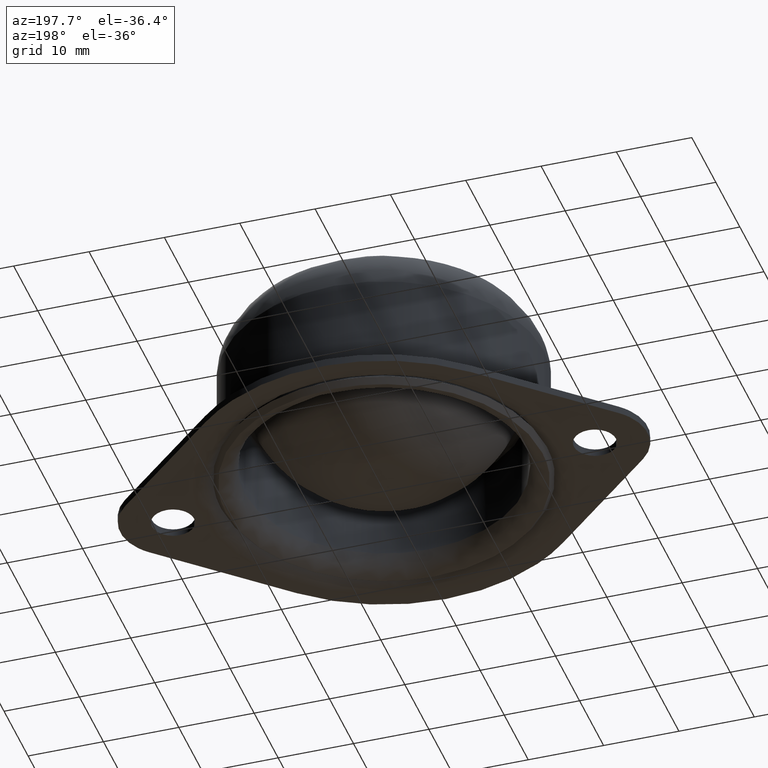
[diagram: clean part render]
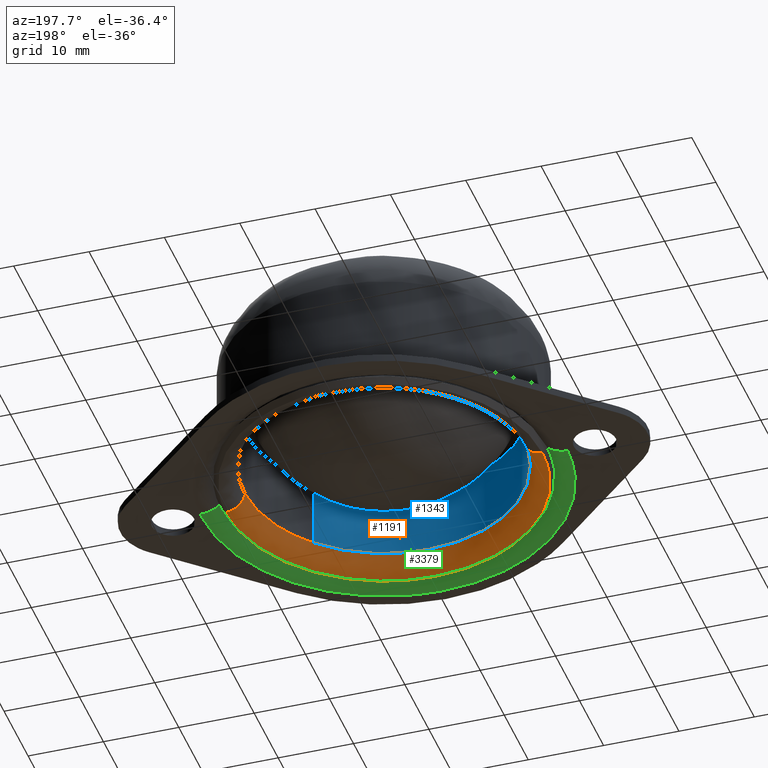
[diagram: same view with three faces highlighted in distinct colors, each labeled with its STEP entity id]
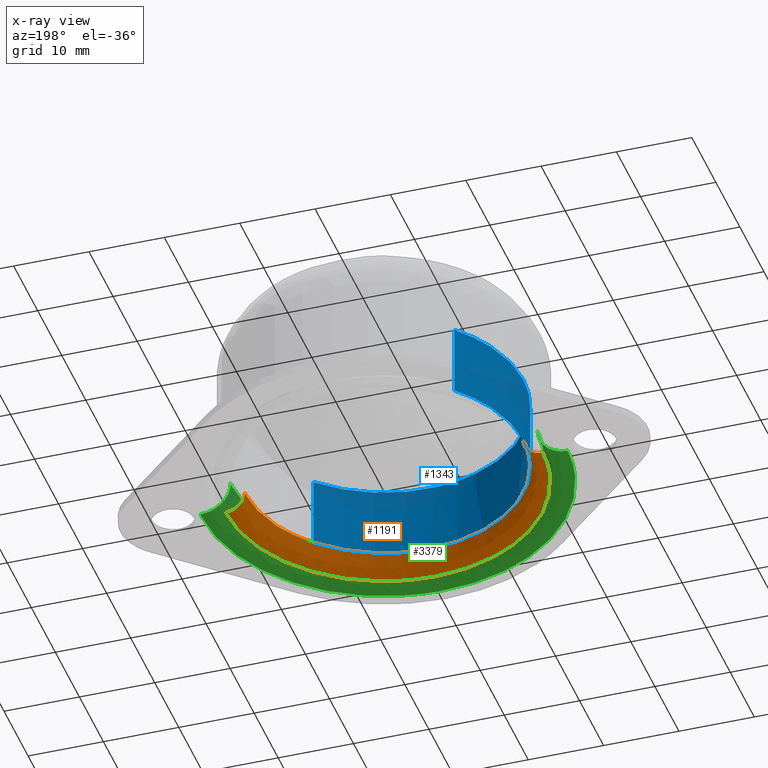
[diagram: x-ray of the same camera — body ghosted, the three highlighted faces saturated]
A machine part, auxiliary view with three faces highlighted in distinct colors.
The next image is the same camera in x-ray (body ghosted, the three faces saturated) — at least one of them is partly hidden behind the body in this view.
Their STEP definitions:

[orange] entity #1191 — the highlighted face is a freeform B-spline surface patch.
#864=CARTESIAN_POINT('',(-14.187394579578950,-15.482824312718609,0.000000114078337));
#865=VERTEX_POINT('',#864);
#871=CARTESIAN_POINT('',(-0.000000939415835,-20.999999999999979,3.772895E-016));
#872=VERTEX_POINT('',#871);
#873=CARTESIAN_POINT('',(-0.000000939415835,-20.999999999999979,3.772895E-016));
#874=CARTESIAN_POINT('',(-0.851869822019759,-21.000015865977979,6.849728E-009));
#875=CARTESIAN_POINT('',(-2.799011884055934,-20.881403785911001,0.000000022506355));
#876=CARTESIAN_POINT('',(-5.391136572539282,-20.356165427377299,0.000000043349173));
#877=CARTESIAN_POINT('',(-7.929283038588316,-19.494040823122969,0.000000063757962));
#878=CARTESIAN_POINT('',(-10.282509957399530,-18.385029033072591,0.000000082679846));
#879=CARTESIAN_POINT('',(-12.430540765362389,-16.988077880069969,0.000000099951784));
#880=CARTESIAN_POINT('',(-13.708871589433320,-15.921310460756150,0.000000110230617));
#881=CARTESIAN_POINT('',(-14.187394579578950,-15.482824312718609,0.000000114078337));
#882=B_SPLINE_CURVE_WITH_KNOTS('',3,(#873,#874,#875,#876,#877,#878,#879,#880,#881),.UNSPECIFIED.,.F.,.U.,(4,1,1,1,1,1,4),(9.159482E-009,2.555613293328863,5.841414655166473,7.910225976649496,10.587545192535449,13.629956926317560,15.577084551461819),.UNSPECIFIED.);
#883=EDGE_CURVE('',#872,#865,#882,.T.);
#885=CARTESIAN_POINT('',(20.999999999737959,8.874474E-016,3.772895E-016));
#886=VERTEX_POINT('',#885);
#887=CARTESIAN_POINT('',(20.999999999737959,8.874474E-016,3.772895E-016));
#888=CARTESIAN_POINT('',(21.000082275789801,-1.159688507236779,3.772895E-016));
#889=CARTESIAN_POINT('',(20.839477913026052,-3.092474164647127,3.772895E-016));
#890=CARTESIAN_POINT('',(20.264513954700810,-5.652748570818164,3.772895E-016));
#891=CARTESIAN_POINT('',(19.495111575165261,-7.934726424813935,3.772895E-016));
#892=CARTESIAN_POINT('',(18.556408442125040,-9.919451099284023,3.772895E-016));
#893=CARTESIAN_POINT('',(17.344765577711311,-11.899361179728221,3.772895E-016));
#894=CARTESIAN_POINT('',(15.943668281102990,-13.752664210185319,3.772895E-016));
#895=CARTESIAN_POINT('',(14.260058771090611,-15.478113818729280,3.772895E-016));
#896=CARTESIAN_POINT('',(12.427400966306919,-16.972701969115871,3.772895E-016));
#897=CARTESIAN_POINT('',(10.236730927620080,-18.417204233700961,3.772895E-016));
#898=CARTESIAN_POINT('',(7.352902934704306,-19.781251844656040,3.772895E-016));
#899=CARTESIAN_POINT('',(3.779677386550677,-20.769979737297579,3.772895E-016));
#900=CARTESIAN_POINT('',(1.288553569583285,-21.000137542239688,3.772895E-016));
#901=CARTESIAN_POINT('',(-0.000000939415835,-20.999999999999979,3.772895E-016));
#902=B_SPLINE_CURVE_WITH_KNOTS('',3,(#887,#888,#889,#890,#891,#892,#893,#894,#895,#896,#897,#898,#899,#900,#901),.UNSPECIFIED.,.F.,.U.,(4,1,1,1,1,1,1,1,1,1,1,1,4),(0.000000036760078,3.479054767147851,5.798456630922335,7.860130023572292,10.694941166173930,12.370057398345160,14.818285687690990,17.653074619405722,19.585876879921539,21.905279384400270,25.513209090944269,29.121139527746099,32.986775138493897),.UNSPECIFIED.);
#903=EDGE_CURVE('',#886,#872,#902,.T.);
#966=CARTESIAN_POINT('',(-20.999999999737959,-1.774895E-015,3.772895E-016));
#967=VERTEX_POINT('',#966);
#986=CARTESIAN_POINT('',(-14.187394579578950,-15.482824312718609,0.000000114078337));
#987=CARTESIAN_POINT('',(-14.822513733975709,-14.900879296158619,0.000000109790533));
#988=CARTESIAN_POINT('',(-16.052523571355088,-13.625986663620861,0.000000100397051));
#989=CARTESIAN_POINT('',(-17.601587269815361,-11.550699646180171,0.000000085106217));
#990=CARTESIAN_POINT('',(-18.816160465898729,-9.420190914047902,0.000000069408507));
#991=CARTESIAN_POINT('',(-19.752915935672839,-7.253278895654531,0.000000053442575));
#992=CARTESIAN_POINT('',(-20.366153610787229,-5.256242029408212,0.000000038728293));
#993=CARTESIAN_POINT('',(-20.863839929454230,-2.810910018949975,0.000000020710946));
#994=CARTESIAN_POINT('',(-21.000084239133841,-1.133448192475363,8.351312E-009));
#995=CARTESIAN_POINT('',(-20.999999999737959,-1.774895E-015,3.772895E-016));
#996=B_SPLINE_CURVE_WITH_KNOTS('',3,(#986,#987,#988,#989,#990,#991,#992,#993,#994,#995),.UNSPECIFIED.,.F.,.U.,(4,1,1,1,1,1,1,4),(0.000000010502166,2.584246736330842,5.304515828535413,7.752765949322086,9.928955446426715,12.377198538748820,14.009360749671490,17.409689852772491),.UNSPECIFIED.);
#997=EDGE_CURVE('',#865,#967,#996,.T.);
#1032=CARTESIAN_POINT('',(-18.500000000000000,-1.774830E-015,2.499999999969660));
#1033=VERTEX_POINT('',#1032);
#1034=CARTESIAN_POINT('',(-20.999999999737959,-1.774895E-015,3.772895E-016));
#1035=CARTESIAN_POINT('',(-20.744324765432051,-2.212275E-015,-0.000132067033186));
#1036=CARTESIAN_POINT('',(-20.284205673356361,-2.876954E-015,0.071239683960350));
#1037=CARTESIAN_POINT('',(-19.647169954390598,-3.467351E-015,0.362969159126910));
#1038=CARTESIAN_POINT('',(-19.098982943557719,-3.625887E-015,0.818427246210302));
#1039=CARTESIAN_POINT('',(-18.714905214208560,-3.273195E-015,1.408772553170699));
#1040=CARTESIAN_POINT('',(-18.532095626058659,-2.576734E-015,1.998907862322674));
#1041=CARTESIAN_POINT('',(-18.499989525280331,-2.037128E-015,2.346604111279722));
#1042=CARTESIAN_POINT('',(-18.500000000000000,-1.774830E-015,2.499999999969660));
#1043=B_SPLINE_CURVE_WITH_KNOTS('',3,(#1034,#1035,#1036,#1037,#1038,#1039,#1040,#1041,#1042),.UNSPECIFIED.,.F.,.U.,(4,1,1,1,1,1,4),(0.000000099703742,0.766991281476389,1.380601126672065,2.086211296421535,2.883901465996877,3.466821939990732,3.927015457032708),.UNSPECIFIED.);
#1044=EDGE_CURVE('',#967,#1033,#1043,.T.);
#1049=CARTESIAN_POINT('',(18.500000000000000,8.874149E-016,2.499999999969660));
#1050=VERTEX_POINT('',#1049);
#1051=CARTESIAN_POINT('',(20.999999999737959,8.874474E-016,3.772895E-016));
#1052=CARTESIAN_POINT('',(20.805694587303272,1.053589E-015,-0.000034980748262));
#1053=CARTESIAN_POINT('',(20.386411776773649,1.370028E-015,0.049100565435209));
#1054=CARTESIAN_POINT('',(19.808675840595448,1.673467E-015,0.271892470114194));
#1055=CARTESIAN_POINT('',(19.364510227128559,1.782154E-015,0.588919518613822));
#1056=CARTESIAN_POINT('',(18.989728009886129,1.766068E-015,0.982511971260075));
#1057=CARTESIAN_POINT('',(18.702773217739761,1.613312E-015,1.448142255574861));
#1058=CARTESIAN_POINT('',(18.532084125734510,1.288382E-015,1.998901292728886));
#1059=CARTESIAN_POINT('',(18.499989278062689,1.018564E-015,2.346603971531264));
#1060=CARTESIAN_POINT('',(18.500000000000000,8.874149E-016,2.499999999969660));
#1061=B_SPLINE_CURVE_WITH_KNOTS('',3,(#1051,#1052,#1053,#1054,#1055,#1056,#1057,#1058,#1059,#1060),.UNSPECIFIED.,.F.,.U.,(4,1,1,1,1,1,1,4),(0.000000099706883,0.582916026631016,1.257880891828751,1.840805102475129,2.208925010525802,2.883901465996887,3.466821939990747,3.927015457032711),.UNSPECIFIED.);
#1062=EDGE_CURVE('',#886,#1050,#1061,.T.);
#1111=CARTESIAN_POINT('',(21.173376579469736,0.591938535083159,0.006019133655719));
#1112=CARTESIAN_POINT('',(21.173376579469739,0.297692918457087,0.006019133655719));
#1113=CARTESIAN_POINT('',(21.173376579469725,-21.173376579469725,0.006019133655719));
#1114=CARTESIAN_POINT('',(2.592905E-015,-21.173376579469736,0.006019133655719));
#1115=CARTESIAN_POINT('',(-21.173376579469725,-21.173376579469725,0.006019133655719));
#1116=CARTESIAN_POINT('',(-21.173376579469736,0.297692918457088,0.006019133655719));
#1117=CARTESIAN_POINT('',(-21.173376579469728,0.591938535083166,0.006019133655719));
#1118=CARTESIAN_POINT('',(18.305651776180618,0.511766304985171,-0.193339379460539));
#1119=CARTESIAN_POINT('',(18.305651776180621,0.257373351909979,-0.193339379460539));
#1120=CARTESIAN_POINT('',(18.305651776180611,-18.305651776180611,-0.193339379460538));
#1121=CARTESIAN_POINT('',(2.241722E-015,-18.305651776180625,-0.193339379460539));
#1122=CARTESIAN_POINT('',(-18.305651776180611,-18.305651776180614,-0.193339379460538));
#1123=CARTESIAN_POINT('',(-18.305651776180618,0.257373351909980,-0.193339379460539));
#1124=CARTESIAN_POINT('',(-18.305651776180611,0.511766304985177,-0.193339379460539));
#1125=CARTESIAN_POINT('',(18.506084238063789,0.517369742746972,2.674310562979258));
#1126=CARTESIAN_POINT('',(18.506084238063789,0.260191387300205,2.674310562979259));
#1127=CARTESIAN_POINT('',(18.506084238063789,-18.506084238063774,2.674310562979259));
#1128=CARTESIAN_POINT('',(2.266267E-015,-18.506084238063785,2.674310562979259));
#1129=CARTESIAN_POINT('',(-18.506084238063774,-18.506084238063789,2.674310562979259));
#1130=CARTESIAN_POINT('',(-18.506084238063785,0.260191387300207,2.674310562979259));
#1131=CARTESIAN_POINT('',(-18.506084238063785,0.517369742746979,2.674310562979259));
#1139=(BOUNDED_SURFACE()B_SPLINE_SURFACE(2,2,((#1111,#1118,#1125),(#1112,#1119,#1126),(#1113,#1120,#1127),(#1114,#1121,#1128),(#1115,#1122,#1129),(#1116,#1123,#1130),(#1117,#1124,#1131)),.UNSPECIFIED.,.F.,.F.,.U.)B_SPLINE_SURFACE_WITH_KNOTS((3,1,2,1,3),(3,3),(0.0,0.701623979235922,35.782822941032791,70.864021902829649,71.565645882065596),(0.0,4.556818146925670),.UNSPECIFIED.)GEOMETRIC_REPRESENTATION_ITEM()RATIONAL_B_SPLINE_SURFACE(((0.920730318469245,0.602530283667150,0.915630244211508),(0.915399262344060,0.599041615275418,0.910328717669053),(0.643515399959645,0.421119527297086,0.639950864003831),(0.910068206218876,0.595552946883686,0.905027191126598),(0.643515399959645,0.421119527297086,0.639950864003831),(0.915399262344060,0.599041615275418,0.910328717669053),(0.920730318469245,0.602530283667150,0.915630244211508)))REPRESENTATION_ITEM('')SURFACE());
#1140=ORIENTED_EDGE('',*,*,#1044,.T.);
#1141=CARTESIAN_POINT('',(-0.000000998645960,-18.499999999999972,2.499999999969660));
#1142=VERTEX_POINT('',#1141);
#1143=CARTESIAN_POINT('',(-0.000000998645960,-18.499999999999972,2.499999999969660));
#1144=CARTESIAN_POINT('',(-0.983790155936761,-18.500057907333471,2.499999999969654));
#1145=CARTESIAN_POINT('',(-2.913516246040656,-18.345714195958131,2.499999999969669));
#1146=CARTESIAN_POINT('',(-5.865200719289161,-17.635247137715361,2.499999999969656));
#1147=CARTESIAN_POINT('',(-8.312472511102454,-16.595034888358381,2.499999999969651));
#1148=CARTESIAN_POINT('',(-10.522053822442700,-15.270586392195501,2.499999999969688));
#1149=CARTESIAN_POINT('',(-12.500459775908780,-13.736441365353009,2.499999999969614));
#1150=CARTESIAN_POINT('',(-14.509895473801221,-11.612912816871860,2.499999999969671));
#1151=CARTESIAN_POINT('',(-16.099150314038699,-9.250055231353104,2.499999999969663));
#1152=CARTESIAN_POINT('',(-17.176012180633819,-6.991079127732906,2.499999999969653));
#1153=CARTESIAN_POINT('',(-17.817704380042649,-5.087854771118143,2.499999999969670));
#1154=CARTESIAN_POINT('',(-18.346254784191480,-2.799977493634494,2.499999999969646));
#1155=CARTESIAN_POINT('',(-18.500139994520421,-1.135152146121024,2.499999999969672));
#1156=CARTESIAN_POINT('',(-18.500000000000000,-1.774830E-015,2.499999999969660));
#1157=B_SPLINE_CURVE_WITH_KNOTS('',3,(#1143,#1144,#1145,#1146,#1147,#1148,#1149,#1150,#1151,#1152,#1153,#1154,#1155,#1156),.UNSPECIFIED.,.F.,.U.,(4,1,1,1,1,1,1,1,1,1,1,4),(0.000000041768018,2.951363364735922,5.789248784030509,9.081188737806635,10.897420305390339,13.508283817461100,16.573153715127450,19.638047160295532,22.021862642627529,24.065138686210229,25.654352602841460,29.059777069136711),.UNSPECIFIED.);
#1158=EDGE_CURVE('',#1142,#1033,#1157,.T.);
#1159=ORIENTED_EDGE('',*,*,#1158,.F.);
#1160=CARTESIAN_POINT('',(13.419425693171290,-12.734559467866900,2.499999999969661));
#1161=VERTEX_POINT('',#1160);
#1162=CARTESIAN_POINT('',(13.419425693171290,-12.734559467866900,2.499999999969661));
#1163=CARTESIAN_POINT('',(12.746616743750129,-13.443653653647949,2.499999999969663));
#1164=CARTESIAN_POINT('',(11.550704450164339,-14.518744466974290,2.499999999969654));
#1165=CARTESIAN_POINT('',(9.453829607155271,-15.960549127352250,2.499999999969682));
#1166=CARTESIAN_POINT('',(7.292396672312240,-17.073610667784010,2.499999999969611));
#1167=CARTESIAN_POINT('',(4.993197473742123,-17.860326496317558,2.499999999969732));
#1168=CARTESIAN_POINT('',(2.580544302633439,-18.372632161361370,2.499999999969611));
#1169=CARTESIAN_POINT('',(0.977489041562305,-18.500070274664449,2.499999999969686));
#1170=CARTESIAN_POINT('',(-0.000000998645960,-18.499999999999972,2.499999999969660));
#1171=B_SPLINE_CURVE_WITH_KNOTS('',3,(#1162,#1163,#1164,#1165,#1166,#1167,#1168,#1169,#1170),.UNSPECIFIED.,.F.,.U.,(4,1,1,1,1,1,4),(0.000000011681411,2.932461467996342,4.809244339090020,7.624396045000724,10.204976624559571,12.081759495647111,15.014220951965710),.UNSPECIFIED.);
#1172=EDGE_CURVE('',#1161,#1142,#1171,.T.);
#1173=ORIENTED_EDGE('',*,*,#1172,.F.);
#1174=CARTESIAN_POINT('',(18.500000000000000,8.874149E-016,2.499999999969660));
#1175=CARTESIAN_POINT('',(18.500272308901899,-1.353374394860061,2.499999999969664));
#1176=CARTESIAN_POINT('',(18.274170216672061,-3.401564510390391,2.499999999969660));
#1177=CARTESIAN_POINT('',(17.505908719920729,-6.115839318818195,2.499999999969653));
#1178=CARTESIAN_POINT('',(16.660917546844068,-8.145871121648199,2.499999999969668));
#1179=CARTESIAN_POINT('',(15.359168913149681,-10.440521100385761,2.499999999969665));
#1180=CARTESIAN_POINT('',(14.200037131720009,-11.912147156261669,2.499999999969658));
#1181=CARTESIAN_POINT('',(13.419425693171290,-12.734559467866900,2.499999999969661));
#1182=B_SPLINE_CURVE_WITH_KNOTS('',3,(#1174,#1175,#1176,#1177,#1178,#1179,#1180,#1181),.UNSPECIFIED.,.F.,.U.,(4,1,1,1,1,4),(0.000000010469057,4.060046569441848,6.144943701685552,8.449279325461708,10.643899512732339,14.045557634802879),.UNSPECIFIED.);
#1183=EDGE_CURVE('',#1050,#1161,#1182,.T.);
#1184=ORIENTED_EDGE('',*,*,#1183,.F.);
#1185=ORIENTED_EDGE('',*,*,#1062,.F.);
#1186=ORIENTED_EDGE('',*,*,#903,.T.);
#1187=ORIENTED_EDGE('',*,*,#883,.T.);
#1188=ORIENTED_EDGE('',*,*,#997,.T.);
#1189=EDGE_LOOP('',(#1140,#1159,#1173,#1184,#1185,#1186,#1187,#1188));
#1190=FACE_OUTER_BOUND('',#1189,.T.);
#1191=ADVANCED_FACE('',(#1190),#1139,.T.);

[blue] entity #1343 — the highlighted face is a freeform B-spline surface patch.
#1032=CARTESIAN_POINT('',(-18.500000000000000,-1.774830E-015,2.499999999969660));
#1033=VERTEX_POINT('',#1032);
#1083=CARTESIAN_POINT('',(-13.419425693171220,12.734559467866831,2.499999999969660));
#1084=VERTEX_POINT('',#1083);
#1097=CARTESIAN_POINT('',(-18.500000000000000,-1.774830E-015,2.499999999969660));
#1098=CARTESIAN_POINT('',(-18.500044424536590,0.877847224998248,2.499999999969656));
#1099=CARTESIAN_POINT('',(-18.380005881572419,2.560373290904118,2.499999999969669));
#1100=CARTESIAN_POINT('',(-17.836103216406080,5.142865485915799,2.499999999969655));
#1101=CARTESIAN_POINT('',(-16.867650047979470,7.796484165520149,2.499999999969659));
#1102=CARTESIAN_POINT('',(-15.389958674081880,10.419266723877101,2.499999999969650));
#1103=CARTESIAN_POINT('',(-14.099273857293200,12.018237854188300,2.499999999969675));
#1104=CARTESIAN_POINT('',(-13.419425693171220,12.734559467866831,2.499999999969660));
#1105=B_SPLINE_CURVE_WITH_KNOTS('',3,(#1097,#1098,#1099,#1100,#1101,#1102,#1103,#1104),.UNSPECIFIED.,.F.,.U.,(4,1,1,1,1,4),(0.000000010469066,2.633537941346297,5.047629129515540,7.900613943590565,11.082825381608840,14.045557634802840),.UNSPECIFIED.);
#1106=EDGE_CURVE('',#1033,#1084,#1105,.T.);
#1141=CARTESIAN_POINT('',(-0.000000998645960,-18.499999999999972,2.499999999969660));
#1142=VERTEX_POINT('',#1141);
#1143=CARTESIAN_POINT('',(-0.000000998645960,-18.499999999999972,2.499999999969660));
#1144=CARTESIAN_POINT('',(-0.983790155936761,-18.500057907333471,2.499999999969654));
#1145=CARTESIAN_POINT('',(-2.913516246040656,-18.345714195958131,2.499999999969669));
#1146=CARTESIAN_POINT('',(-5.865200719289161,-17.635247137715361,2.499999999969656));
#1147=CARTESIAN_POINT('',(-8.312472511102454,-16.595034888358381,2.499999999969651));
#1148=CARTESIAN_POINT('',(-10.522053822442700,-15.270586392195501,2.499999999969688));
#1149=CARTESIAN_POINT('',(-12.500459775908780,-13.736441365353009,2.499999999969614));
#1150=CARTESIAN_POINT('',(-14.509895473801221,-11.612912816871860,2.499999999969671));
#1151=CARTESIAN_POINT('',(-16.099150314038699,-9.250055231353104,2.499999999969663));
#1152=CARTESIAN_POINT('',(-17.176012180633819,-6.991079127732906,2.499999999969653));
#1153=CARTESIAN_POINT('',(-17.817704380042649,-5.087854771118143,2.499999999969670));
#1154=CARTESIAN_POINT('',(-18.346254784191480,-2.799977493634494,2.499999999969646));
#1155=CARTESIAN_POINT('',(-18.500139994520421,-1.135152146121024,2.499999999969672));
#1156=CARTESIAN_POINT('',(-18.500000000000000,-1.774830E-015,2.499999999969660));
#1157=B_SPLINE_CURVE_WITH_KNOTS('',3,(#1143,#1144,#1145,#1146,#1147,#1148,#1149,#1150,#1151,#1152,#1153,#1154,#1155,#1156),.UNSPECIFIED.,.F.,.U.,(4,1,1,1,1,1,1,1,1,1,1,4),(0.000000041768018,2.951363364735922,5.789248784030509,9.081188737806635,10.897420305390339,13.508283817461100,16.573153715127450,19.638047160295532,22.021862642627529,24.065138686210229,25.654352602841460,29.059777069136711),.UNSPECIFIED.);
#1158=EDGE_CURVE('',#1142,#1033,#1157,.T.);
#1160=CARTESIAN_POINT('',(13.419425693171290,-12.734559467866900,2.499999999969661));
#1161=VERTEX_POINT('',#1160);
#1162=CARTESIAN_POINT('',(13.419425693171290,-12.734559467866900,2.499999999969661));
#1163=CARTESIAN_POINT('',(12.746616743750129,-13.443653653647949,2.499999999969663));
#1164=CARTESIAN_POINT('',(11.550704450164339,-14.518744466974290,2.499999999969654));
#1165=CARTESIAN_POINT('',(9.453829607155271,-15.960549127352250,2.499999999969682));
#1166=CARTESIAN_POINT('',(7.292396672312240,-17.073610667784010,2.499999999969611));
#1167=CARTESIAN_POINT('',(4.993197473742123,-17.860326496317558,2.499999999969732));
#1168=CARTESIAN_POINT('',(2.580544302633439,-18.372632161361370,2.499999999969611));
#1169=CARTESIAN_POINT('',(0.977489041562305,-18.500070274664449,2.499999999969686));
#1170=CARTESIAN_POINT('',(-0.000000998645960,-18.499999999999972,2.499999999969660));
#1171=B_SPLINE_CURVE_WITH_KNOTS('',3,(#1162,#1163,#1164,#1165,#1166,#1167,#1168,#1169,#1170),.UNSPECIFIED.,.F.,.U.,(4,1,1,1,1,1,4),(0.000000011681411,2.932461467996342,4.809244339090020,7.624396045000724,10.204976624559571,12.081759495647111,15.014220951965710),.UNSPECIFIED.);
#1172=EDGE_CURVE('',#1161,#1142,#1171,.T.);
#1213=CARTESIAN_POINT('',(13.419425847474670,-12.734559667461159,12.027477621256820));
#1214=VERTEX_POINT('',#1213);
#1215=CARTESIAN_POINT('',(13.419425847474670,-12.734559667461159,12.027477621256820));
#1216=CARTESIAN_POINT('',(13.419425693171290,-12.734559467866900,2.499999999969661));
#1217=QUASI_UNIFORM_CURVE('',1,(#1215,#1216),.UNSPECIFIED.,.F.,.U.);
#1218=EDGE_CURVE('',#1214,#1161,#1217,.T.);
#1250=CARTESIAN_POINT('',(-13.419425847474670,12.734559667461159,12.027477621256820));
#1251=VERTEX_POINT('',#1250);
#1267=CARTESIAN_POINT('',(-13.419425847474670,12.734559667461159,12.027477621256820));
#1268=CARTESIAN_POINT('',(-13.419425693171220,12.734559467866831,2.499999999969660));
#1269=QUASI_UNIFORM_CURVE('',1,(#1267,#1268),.UNSPECIFIED.,.F.,.U.);
#1270=EDGE_CURVE('',#1251,#1084,#1269,.T.);
#1275=CARTESIAN_POINT('',(13.419425863727319,-12.734559650334450,12.265664562102170));
#1276=CARTESIAN_POINT('',(0.684866213392871,-26.153985514061755,12.265664562102167));
#1277=CARTESIAN_POINT('',(-12.734559650334450,-13.419425863727319,12.265664562102170));
#1278=CARTESIAN_POINT('',(-26.153985514061755,-0.684866213392871,12.265664562102167));
#1279=CARTESIAN_POINT('',(-13.419425863727319,12.734559650334450,12.265664562102170));
#1280=CARTESIAN_POINT('',(13.419425863727319,-12.734559650334450,2.255858385916346));
#1281=CARTESIAN_POINT('',(0.684866213392871,-26.153985514061755,2.255858385916346));
#1282=CARTESIAN_POINT('',(-12.734559650334450,-13.419425863727319,2.255858385916346));
#1283=CARTESIAN_POINT('',(-26.153985514061755,-0.684866213392871,2.255858385916346));
#1284=CARTESIAN_POINT('',(-13.419425863727319,12.734559650334450,2.255858385916346));
#1292=(BOUNDED_SURFACE()B_SPLINE_SURFACE(2,1,((#1275,#1280),(#1276,#1281),(#1277,#1282),(#1278,#1283),(#1279,#1284)),.UNSPECIFIED.,.F.,.F.,.U.)B_SPLINE_SURFACE_WITH_KNOTS((3,2,3),(2,2),(0.0,30.651803615609019,61.303607231218038),(0.0,10.009806176185821),.UNSPECIFIED.)GEOMETRIC_REPRESENTATION_ITEM()RATIONAL_B_SPLINE_SURFACE(((1.0,1.0),(0.707106781186548,0.707106781186548),(1.0,1.0),(0.707106781186548,0.707106781186548),(1.0,1.0)))REPRESENTATION_ITEM('')SURFACE());
#1293=ORIENTED_EDGE('',*,*,#1106,.T.);
#1294=ORIENTED_EDGE('',*,*,#1270,.F.);
#1295=CARTESIAN_POINT('',(-18.500000000000000,0.0,12.027477621071460));
#1296=VERTEX_POINT('',#1295);
#1297=CARTESIAN_POINT('',(-18.500000000000000,0.0,12.027477621071460));
#1298=CARTESIAN_POINT('',(-18.500011146182171,0.694960572203140,12.027477621077910));
#1299=CARTESIAN_POINT('',(-18.413341597381841,2.231188367069768,12.027477621093270));
#1300=CARTESIAN_POINT('',(-17.938515902620729,4.827809515720548,12.027477621123650));
#1301=CARTESIAN_POINT('',(-17.085881810544141,7.252801367305544,12.027477621157431));
#1302=CARTESIAN_POINT('',(-15.638469272917989,10.050163125191069,12.027477621202420));
#1303=CARTESIAN_POINT('',(-14.401648702449609,11.700023823799560,12.027477621234320));
#1304=CARTESIAN_POINT('',(-13.419425847474670,12.734559667461159,12.027477621256820));
#1305=B_SPLINE_CURVE_WITH_KNOTS('',3,(#1297,#1298,#1299,#1300,#1301,#1302,#1303,#1304),.UNSPECIFIED.,.F.,.U.,(4,1,1,1,1,4),(0.000000010470115,2.084885461802246,4.608701103924844,7.900614018518687,9.766049660989275,14.045557768012211),.UNSPECIFIED.);
#1306=EDGE_CURVE('',#1296,#1251,#1305,.T.);
#1307=ORIENTED_EDGE('',*,*,#1306,.F.);
#1308=CARTESIAN_POINT('',(-6.375894078736481,-17.366576366593758,12.027477621562349));
#1309=VERTEX_POINT('',#1308);
#1310=CARTESIAN_POINT('',(-6.375894078736481,-17.366576366593758,12.027477621562349));
#1311=CARTESIAN_POINT('',(-7.533639896823466,-16.941724557655100,12.027477621538941));
#1312=CARTESIAN_POINT('',(-9.391839297242264,-16.039515608333190,12.027477621497111));
#1313=CARTESIAN_POINT('',(-11.861392726213790,-14.282057572995139,12.027477621431000));
#1314=CARTESIAN_POINT('',(-13.818536559685800,-12.408025770528781,12.027477621369250));
#1315=CARTESIAN_POINT('',(-15.342383807034800,-10.422844055994570,12.027477621311681));
#1316=CARTESIAN_POINT('',(-16.473636224228450,-8.496053269435413,12.027477621259450));
#1317=CARTESIAN_POINT('',(-17.416986501674089,-6.404967571003275,12.027477621208281));
#1318=CARTESIAN_POINT('',(-18.262175566390098,-3.552789967313007,12.027477621141580));
#1319=CARTESIAN_POINT('',(-18.500197967128901,-1.291957480614178,12.027477621096221));
#1320=CARTESIAN_POINT('',(-18.500000000000000,0.0,12.027477621071460));
#1321=B_SPLINE_CURVE_WITH_KNOTS('',3,(#1310,#1311,#1312,#1313,#1314,#1315,#1316,#1317,#1318,#1319,#1320),.UNSPECIFIED.,.F.,.U.,(4,1,1,1,1,1,1,1,4),(0.000000024071483,3.699667912393320,6.166120227492272,9.073005319948210,11.803689430930421,13.653541774254890,15.767639087550659,18.674536220243450,22.550373369526561),.UNSPECIFIED.);
#1322=EDGE_CURVE('',#1309,#1296,#1321,.T.);
#1323=ORIENTED_EDGE('',*,*,#1322,.F.);
#1324=CARTESIAN_POINT('',(13.419425847474670,-12.734559667461159,12.027477621256820));
#1325=CARTESIAN_POINT('',(12.744267752670600,-13.446112762288410,12.027477621272411));
#1326=CARTESIAN_POINT('',(11.238586955109909,-14.799044656970320,12.027477621304779));
#1327=CARTESIAN_POINT('',(8.749908527159526,-16.388766925525228,12.027477621352700));
#1328=CARTESIAN_POINT('',(6.094338277585324,-17.540968983956599,12.027477621398409));
#1329=CARTESIAN_POINT('',(3.540898961405432,-18.218554762940808,12.027477621438830));
#1330=CARTESIAN_POINT('',(1.031911809514316,-18.523095799680920,12.027477621474571));
#1331=CARTESIAN_POINT('',(-1.158748390782641,-18.503934906911638,12.027477621503690));
#1332=CARTESIAN_POINT('',(-3.665046855578002,-18.195757705417218,12.027477621534070));
#1333=CARTESIAN_POINT('',(-5.323586764828426,-17.753045244443499,12.027477621551951));
#1334=CARTESIAN_POINT('',(-6.375894078736481,-17.366576366593758,12.027477621562349));
#1335=B_SPLINE_CURVE_WITH_KNOTS('',3,(#1324,#1325,#1326,#1327,#1328,#1329,#1330,#1331,#1332,#1333,#1334),.UNSPECIFIED.,.F.,.U.,(4,1,1,1,1,1,1,1,4),(0.000000021690195,2.942667868980298,6.053513565479257,8.828043911302771,11.602544583592870,13.956703802387270,16.394924971108178,18.160532493333239,21.523593367660322),.UNSPECIFIED.);
#1336=EDGE_CURVE('',#1214,#1309,#1335,.T.);
#1337=ORIENTED_EDGE('',*,*,#1336,.F.);
#1338=ORIENTED_EDGE('',*,*,#1218,.T.);
#1339=ORIENTED_EDGE('',*,*,#1172,.T.);
#1340=ORIENTED_EDGE('',*,*,#1158,.T.);
#1341=EDGE_LOOP('',(#1293,#1294,#1307,#1323,#1337,#1338,#1339,#1340));
#1342=FACE_OUTER_BOUND('',#1341,.T.);
#1343=ADVANCED_FACE('',(#1342),#1292,.F.);

[green] entity #3379 — the highlighted face is a freeform B-spline surface patch.
#2852=CARTESIAN_POINT('',(14.758910118650890,-13.791829904315980,3.999999999979672));
#2853=VERTEX_POINT('',#2852);
#2859=CARTESIAN_POINT('',(0.253819215512267,-20.198405278779731,3.999999999926862));
#2860=VERTEX_POINT('',#2859);
#2861=CARTESIAN_POINT('',(14.758910118650890,-13.791829904315980,3.999999999979672));
#2862=CARTESIAN_POINT('',(14.034625863650991,-14.567005435601381,3.999999999977008));
#2863=CARTESIAN_POINT('',(12.809140159289800,-15.686895241349790,3.999999999972537));
#2864=CARTESIAN_POINT('',(10.627425829255440,-17.236512206278810,3.999999999964557));
#2865=CARTESIAN_POINT('',(8.122269659968568,-18.598195473675670,3.999999999955421));
#2866=CARTESIAN_POINT('',(5.381735505553805,-19.539440260622801,3.999999999945455));
#2867=CARTESIAN_POINT('',(2.671157355302400,-20.066734327193920,3.999999999935639));
#2868=CARTESIAN_POINT('',(1.144892910009361,-20.187246050034911,3.999999999930071));
#2869=CARTESIAN_POINT('',(0.253819215512267,-20.198405278779731,3.999999999926862));
#2870=B_SPLINE_CURVE_WITH_KNOTS('',3,(#2861,#2862,#2863,#2864,#2865,#2866,#2867,#2868,#2869),.UNSPECIFIED.,.F.,.U.,(4,1,1,1,1,1,4),(0.000000010529263,3.182655166265198,4.964946903602090,8.020307323988236,11.712175481051110,13.621773949852891,16.295203631329091),.UNSPECIFIED.);
#2871=EDGE_CURVE('',#2853,#2860,#2870,.T.);
#2873=CARTESIAN_POINT('',(-20.193620623522438,-0.507627927964062,3.999999999853723));
#2874=VERTEX_POINT('',#2873);
#2875=CARTESIAN_POINT('',(0.253819215512267,-20.198405278779731,3.999999999926862));
#2876=CARTESIAN_POINT('',(-1.139570078754663,-20.216138947354310,3.999999999921858));
#2877=CARTESIAN_POINT('',(-3.232251338649649,-20.024999855702561,3.999999999914205));
#2878=CARTESIAN_POINT('',(-6.137860817278845,-19.295018875210051,3.999999999903801));
#2879=CARTESIAN_POINT('',(-8.401887811271013,-18.430369194776151,3.999999999895547));
#2880=CARTESIAN_POINT('',(-10.825838603326099,-17.129249500546521,3.999999999886913));
#2881=CARTESIAN_POINT('',(-13.051750386091340,-15.507700298122749,3.999999999878998));
#2882=CARTESIAN_POINT('',(-14.993042401548401,-13.615282503062771,3.999999999871843));
#2883=CARTESIAN_POINT('',(-16.426730410619971,-11.818117275829310,3.999999999866984));
#2884=CARTESIAN_POINT('',(-17.732818150945921,-9.780089201819218,3.999999999862015));
#2885=CARTESIAN_POINT('',(-18.783664869956969,-7.594492343712127,3.999999999858612));
#2886=CARTESIAN_POINT('',(-19.557698042603139,-5.212857125677316,3.999999999855777));
#2887=CARTESIAN_POINT('',(-20.033196824675819,-2.922442015053967,3.999999999854242));
#2888=CARTESIAN_POINT('',(-20.172018467887000,-1.368032960446741,3.999999999853602));
#2889=CARTESIAN_POINT('',(-20.193620623522438,-0.507627927964062,3.999999999853723));
#2890=B_SPLINE_CURVE_WITH_KNOTS('',3,(#2875,#2876,#2877,#2878,#2879,#2880,#2881,#2882,#2883,#2884,#2885,#2886,#2887,#2888,#2889),.UNSPECIFIED.,.F.,.U.,(4,1,1,1,1,1,1,1,1,1,1,1,4),(0.000000036353040,4.180443314621105,6.270658435670388,8.975662883182825,11.434743302958051,14.508625712941550,17.213588134420569,19.549719929919139,21.394032026346089,24.467892721670960,26.804032501019929,28.894248762605748,31.476278913700469),.UNSPECIFIED.);
#2891=EDGE_CURVE('',#2860,#2874,#2890,.T.);
#2963=CARTESIAN_POINT('',(20.193620623522438,0.507627927964055,3.999999999853723));
#2964=VERTEX_POINT('',#2963);
#2982=CARTESIAN_POINT('',(20.199999999999999,0.0,4.0));
#2983=VERTEX_POINT('',#2982);
#2984=CARTESIAN_POINT('',(20.193620623522438,0.507627927964055,3.999999999853723));
#2985=CARTESIAN_POINT('',(20.197873326597861,0.338455607008687,3.999999999902479));
#2986=CARTESIAN_POINT('',(20.200000036036379,0.169226104537176,3.999999999951243));
#2987=CARTESIAN_POINT('',(20.199999999999999,0.0,4.0));
#2988=B_SPLINE_CURVE_WITH_KNOTS('',3,(#2984,#2985,#2986,#2987),.UNSPECIFIED.,.F.,.U.,(4,4),(8.241852E-012,0.507682207910944),.UNSPECIFIED.);
#2989=EDGE_CURVE('',#2964,#2983,#2988,.T.);
#2991=CARTESIAN_POINT('',(20.199999999999999,0.0,4.0));
#2992=CARTESIAN_POINT('',(20.200170518506489,-1.304641582754031,3.999999999999948));
#2993=CARTESIAN_POINT('',(20.011639556091861,-3.241736861919570,3.999999999999163));
#2994=CARTESIAN_POINT('',(19.322815509148750,-6.047603320257830,3.999999999996554));
#2995=CARTESIAN_POINT('',(18.461476772127622,-8.348888565693052,3.999999999993325));
#2996=CARTESIAN_POINT('',(16.979722863752539,-11.105615957394610,3.999999999987843));
#2997=CARTESIAN_POINT('',(15.649800178037379,-12.838730650677430,3.999999999982917));
#2998=CARTESIAN_POINT('',(14.758910118650890,-13.791829904315980,3.999999999979672));
#2999=B_SPLINE_CURVE_WITH_KNOTS('',3,(#2991,#2992,#2993,#2994,#2995,#2996,#2997,#2998),.UNSPECIFIED.,.F.,.U.,(4,1,1,1,1,4),(9.400660E-009,3.913879488577825,5.811517667003095,8.657962612745518,11.267226085785881,15.181105047721930),.UNSPECIFIED.);
#3000=EDGE_CURVE('',#2983,#2853,#2999,.T.);
#3209=CARTESIAN_POINT('',(-24.192357380653089,-0.608148309743509,6.908297E-016));
#3210=VERTEX_POINT('',#3209);
#3211=CARTESIAN_POINT('',(-24.192357380653089,-0.608148309743509,6.908297E-016));
#3212=CARTESIAN_POINT('',(-23.897924284136138,-0.600746840462815,-0.000047310099934));
#3213=CARTESIAN_POINT('',(-23.309077213769321,-0.585944382607640,0.065340433951537));
#3214=CARTESIAN_POINT('',(-22.562097766929622,-0.567166787647851,0.322388901161306));
#3215=CARTESIAN_POINT('',(-21.891376227503191,-0.550306166580531,0.702494992553756));
#3216=CARTESIAN_POINT('',(-21.309491435633880,-0.535678726720742,1.186136708810252));
#3217=CARTESIAN_POINT('',(-20.840422594125851,-0.523887258091172,1.779887224293693));
#3218=CARTESIAN_POINT('',(-20.492496693570860,-0.515141084867013,2.431040148394981));
#3219=CARTESIAN_POINT('',(-20.255314736613919,-0.509178796696012,3.149170576216307));
#3220=CARTESIAN_POINT('',(-20.193573723589129,-0.507626748992157,3.705475162924834));
#3221=CARTESIAN_POINT('',(-20.193620623522438,-0.507627927964062,3.999999999853723));
#3222=B_SPLINE_CURVE_WITH_KNOTS('',3,(#3211,#3212,#3213,#3214,#3215,#3216,#3217,#3218,#3219,#3220,#3221),.UNSPECIFIED.,.F.,.U.,(4,1,1,1,1,1,1,1,4),(0.000000087941693,0.883575438037829,1.767157433327907,2.356213261136575,3.190673635020014,4.025181860874931,4.614242144816535,5.399655282990992,6.283224731421827),.UNSPECIFIED.);
#3223=EDGE_CURVE('',#3210,#2874,#3222,.T.);
#3253=CARTESIAN_POINT('',(24.192357380653089,0.608148309743514,6.908297E-016));
#3254=VERTEX_POINT('',#3253);
#3273=CARTESIAN_POINT('',(24.192357380653089,0.608148309743514,6.908297E-016));
#3274=CARTESIAN_POINT('',(23.914285433207031,0.601158127589429,-0.000041080855970));
#3275=CARTESIAN_POINT('',(23.325430139199948,0.586355463008104,0.061676104871473));
#3276=CARTESIAN_POINT('',(22.560751876041110,0.567132954596530,0.319534184345895));
#3277=CARTESIAN_POINT('',(21.934752592111149,0.551396563122079,0.679458494621625));
#3278=CARTESIAN_POINT('',(21.435345242070952,0.538842444024420,1.079273124341983));
#3279=CARTESIAN_POINT('',(21.005369060085268,0.528033688011078,1.553842179127508));
#3280=CARTESIAN_POINT('',(20.562024396414600,0.516888874646368,2.244484484121332));
#3281=CARTESIAN_POINT('',(20.262048683645819,0.509348074887563,3.067317932502909));
#3282=CARTESIAN_POINT('',(20.193598094201761,0.507627361621433,3.721848755119890));
#3283=CARTESIAN_POINT('',(20.193620623522438,0.507627927964055,3.999999999853723));
#3284=B_SPLINE_CURVE_WITH_KNOTS('',3,(#3273,#3274,#3275,#3276,#3277,#3278,#3279,#3280,#3281,#3282,#3283),.UNSPECIFIED.,.F.,.U.,(4,1,1,1,1,1,1,1,4),(0.000000087942082,0.834479499928782,1.767157433328282,2.405310764639620,2.994357524248874,3.681555374035771,4.319711948125652,5.448749688863706,6.283224731421824),.UNSPECIFIED.);
#3285=EDGE_CURVE('',#3254,#2964,#3284,.T.);
#3293=CARTESIAN_POINT('',(24.453968257048150,1.299290981394004,0.009734769538026));
#3294=CARTESIAN_POINT('',(24.462517070859647,0.959216108867094,0.009734769538026));
#3295=CARTESIAN_POINT('',(25.086323051632945,-23.856009028876894,0.009734769538026));
#3296=CARTESIAN_POINT('',(0.615157011378020,-24.471166040254914,0.009734769538026));
#3297=CARTESIAN_POINT('',(-23.856009028876894,-25.086323051632945,0.009734769538026));
#3298=CARTESIAN_POINT('',(-24.479815009649883,-0.271097913901519,0.009734769538026));
#3299=CARTESIAN_POINT('',(-24.488363823461071,0.068976958613108,0.009734769538026));
#3300=CARTESIAN_POINT('',(19.870401300901896,1.055756388311348,-0.310956950591504));
#3301=CARTESIAN_POINT('',(19.877347754716482,0.779423969849362,-0.310956950591504));
#3302=CARTESIAN_POINT('',(20.384229707026837,-19.384521475572694,-0.310956950591504));
#3303=CARTESIAN_POINT('',(0.499854115727073,-19.884375591299769,-0.310956950591504));
#3304=CARTESIAN_POINT('',(-19.384521475572694,-20.384229707026837,-0.310956950591504));
#3305=CARTESIAN_POINT('',(-19.891403427882796,-0.220284261615001,-0.310956950591504));
#3306=CARTESIAN_POINT('',(-19.898349881697133,0.056048156837004,-0.310956950591504));
#3307=CARTESIAN_POINT('',(20.189049793020324,1.072686855697759,4.277402296291174));
#3308=CARTESIAN_POINT('',(20.196107642523415,0.791923076885625,4.277402296291174));
#3309=CARTESIAN_POINT('',(20.711118125674179,-19.695378234079545,4.277402296291173));
#3310=CARTESIAN_POINT('',(0.507869945797319,-20.203248179876862,4.277402296291174));
#3311=CARTESIAN_POINT('',(-19.695378234079545,-20.711118125674179,4.277402296291173));
#3312=CARTESIAN_POINT('',(-20.210388717230053,-0.223816814719395,4.277402296291174));
#3313=CARTESIAN_POINT('',(-20.217446566732885,0.056946964082599,4.277402296291173));
#3321=(BOUNDED_SURFACE()B_SPLINE_SURFACE(2,2,((#3293,#3300,#3307),(#3294,#3301,#3308),(#3295,#3302,#3309),(#3296,#3303,#3310),(#3297,#3304,#3311),(#3298,#3305,#3312),(#3299,#3306,#3313)),.UNSPECIFIED.,.F.,.F.,.U.)B_SPLINE_SURFACE_WITH_KNOTS((3,1,2,1,3),(3,3),(0.0,0.811159281688300,41.369123365223402,81.927087448758499,82.738246730416961),(0.0,7.290902417966058),.UNSPECIFIED.)GEOMETRIC_REPRESENTATION_ITEM()RATIONAL_B_SPLINE_SURFACE(((0.921564716010926,0.606435493452452,0.926697837806666),(0.916228828698865,0.602924213779004,0.921332229565641),(0.644098575789570,0.423848950436964,0.647686209279166),(0.910892941386805,0.599412934105556,0.915966621324616),(0.644098575789570,0.423848950436964,0.647686209279166),(0.916228828698669,0.602924213778875,0.921332229565444),(0.921564716010533,0.606435493452194,0.926697837806272)))REPRESENTATION_ITEM('')SURFACE());
#3322=ORIENTED_EDGE('',*,*,#2891,.F.);
#3323=ORIENTED_EDGE('',*,*,#2871,.F.);
#3324=ORIENTED_EDGE('',*,*,#3000,.F.);
#3325=ORIENTED_EDGE('',*,*,#2989,.F.);
#3326=ORIENTED_EDGE('',*,*,#3285,.F.);
#3327=CARTESIAN_POINT('',(24.199999999999999,0.0,0.0));
#3328=VERTEX_POINT('',#3327);
#3329=CARTESIAN_POINT('',(24.192357380653089,0.608148309743514,6.908297E-016));
#3330=CARTESIAN_POINT('',(24.197452203150281,0.405476519290578,4.605671E-016));
#3331=CARTESIAN_POINT('',(24.200000043171450,0.202736224248984,2.302630E-016));
#3332=CARTESIAN_POINT('',(24.199999999999999,0.0,0.0));
#3333=B_SPLINE_CURVE_WITH_KNOTS('',3,(#3329,#3330,#3331,#3332),.UNSPECIFIED.,.F.,.U.,(4,4),(9.874157E-012,0.608213338194769),.UNSPECIFIED.);
#3334=EDGE_CURVE('',#3254,#3328,#3333,.T.);
#3335=ORIENTED_EDGE('',*,*,#3334,.T.);
#3336=CARTESIAN_POINT('',(0.304081381423501,-24.198089480648481,3.454151E-016));
#3337=VERTEX_POINT('',#3336);
#3338=CARTESIAN_POINT('',(24.199999999999999,0.0,0.0));
#3339=CARTESIAN_POINT('',(24.200071962245840,-1.178411060770057,2.103486E-019));
#3340=CARTESIAN_POINT('',(24.070610272727748,-2.946004932038591,2.375259E-018));
#3341=CARTESIAN_POINT('',(23.579898847859020,-5.603409499789045,9.856018E-018));
#3342=CARTESIAN_POINT('',(22.880634114841079,-8.063460211156679,2.027813E-017));
#3343=CARTESIAN_POINT('',(21.639151906982629,-11.010717779333801,3.852689E-017));
#3344=CARTESIAN_POINT('',(19.921355175555050,-13.885041807471151,6.356116E-017));
#3345=CARTESIAN_POINT('',(18.060747786906621,-16.177673942790541,9.052948E-017));
#3346=CARTESIAN_POINT('',(16.004883398736020,-18.221886005702221,1.202402E-016));
#3347=CARTESIAN_POINT('',(13.805253975472390,-19.964393775551429,1.519488E-016));
#3348=CARTESIAN_POINT('',(11.267688709333539,-21.471762310147199,1.884387E-016));
#3349=CARTESIAN_POINT('',(8.671862606664048,-22.651207022390430,2.257014E-016));
#3350=CARTESIAN_POINT('',(5.860708668906698,-23.554286909906299,2.659880E-016));
#3351=CARTESIAN_POINT('',(2.954148718756072,-24.073877778790500,3.075675E-016));
#3352=CARTESIAN_POINT('',(1.089619777999694,-24.188221999000842,3.342010E-016));
#3353=CARTESIAN_POINT('',(0.304081381423501,-24.198089480648481,3.454151E-016));
#3354=B_SPLINE_CURVE_WITH_KNOTS('',3,(#3338,#3339,#3340,#3341,#3342,#3343,#3344,#3345,#3346,#3347,#3348,#3349,#3350,#3351,#3352,#3353),.UNSPECIFIED.,.F.,.U.,(4,1,1,1,1,1,1,1,1,1,1,1,1,4),(0.000000027879281,3.535222971066297,5.302860344482163,8.101592208412932,11.194933179748309,14.877477667159569,18.118125200576191,20.033005826872952,23.568275002308109,26.514309631583931,28.871137939521969,32.111786111769270,35.352433003148143,37.709239936783298),.UNSPECIFIED.);
#3355=EDGE_CURVE('',#3328,#3337,#3354,.T.);
#3356=ORIENTED_EDGE('',*,*,#3355,.T.);
#3357=CARTESIAN_POINT('',(0.304081381423501,-24.198089480648481,3.454151E-016));
#3358=CARTESIAN_POINT('',(-0.825135802781243,-24.212339318791422,3.615353E-016));
#3359=CARTESIAN_POINT('',(-2.594151732205801,-24.110522899628680,3.867668E-016));
#3360=CARTESIAN_POINT('',(-5.259192630060209,-23.661289007246769,4.247253E-016));
#3361=CARTESIAN_POINT('',(-8.107663782376987,-22.890254481981081,4.652442E-016));
#3362=CARTESIAN_POINT('',(-11.048591253825441,-21.621033912732610,5.069934E-016));
#3363=CARTESIAN_POINT('',(-13.777795746660299,-19.957279960233489,5.456498E-016));
#3364=CARTESIAN_POINT('',(-16.031277286874900,-18.208271780538709,5.775008E-016));
#3365=CARTESIAN_POINT('',(-18.091335961744011,-16.163115043471549,6.065379E-016));
#3366=CARTESIAN_POINT('',(-19.917572974773201,-13.845149357674920,6.321886E-016));
#3367=CARTESIAN_POINT('',(-21.328477751701499,-11.536623336471189,6.519128E-016));
#3368=CARTESIAN_POINT('',(-22.456849998629650,-9.133803777957152,6.675875E-016));
#3369=CARTESIAN_POINT('',(-23.331292061292100,-6.626500895031256,6.796189E-016));
#3370=CARTESIAN_POINT('',(-23.975123573152491,-3.746090700936513,6.882919E-016));
#3371=CARTESIAN_POINT('',(-24.165257568194448,-1.688015518564477,6.906366E-016));
#3372=CARTESIAN_POINT('',(-24.192357380653089,-0.608148309743509,6.908297E-016));
#3373=B_SPLINE_CURVE_WITH_KNOTS('',3,(#3357,#3358,#3359,#3360,#3361,#3362,#3363,#3364,#3365,#3366,#3367,#3368,#3369,#3370,#3371,#3372),.UNSPECIFIED.,.F.,.U.,(4,1,1,1,1,1,1,1,1,1,1,1,1,4),(0.000000027910971,3.387914634590203,5.302855623662467,8.101584996070180,12.226042443334849,14.877464422589840,17.676218715892571,20.769500077164661,23.568254020831240,26.514286027446492,28.871112237239721,31.522551578210759,34.468587063023371,37.709206366452932),.UNSPECIFIED.);
#3374=EDGE_CURVE('',#3337,#3210,#3373,.T.);
#3375=ORIENTED_EDGE('',*,*,#3374,.T.);
#3376=ORIENTED_EDGE('',*,*,#3223,.T.);
#3377=EDGE_LOOP('',(#3322,#3323,#3324,#3325,#3326,#3335,#3356,#3375,#3376));
#3378=FACE_OUTER_BOUND('',#3377,.T.);
#3379=ADVANCED_FACE('',(#3378),#3321,.T.);